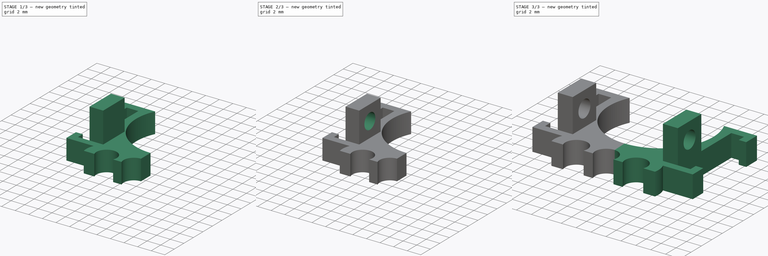
[diagram: build sequence overview — one tinted view per stage of 3, left to right]
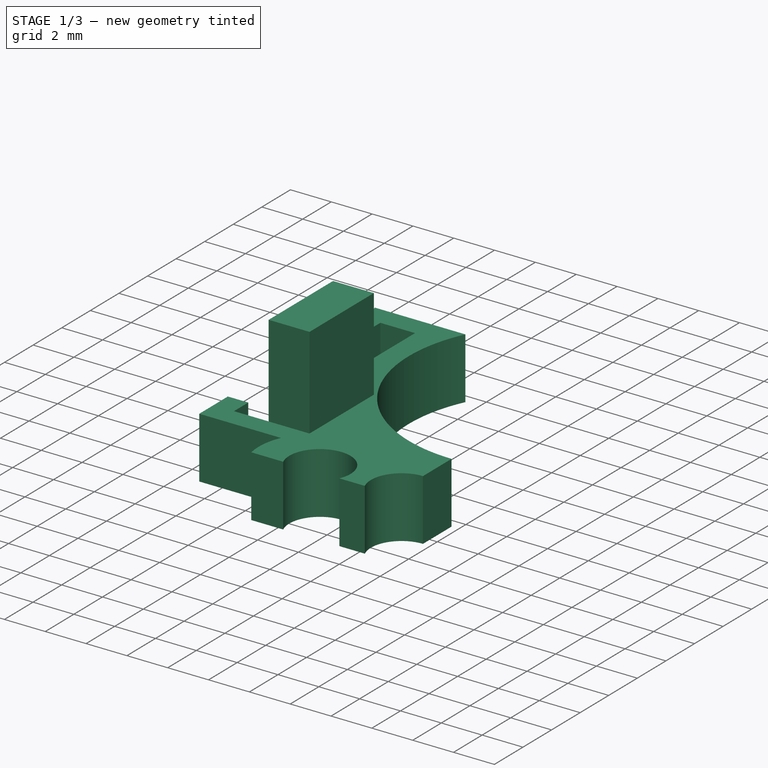
[diagram: stage 1 of 3 — iso view after this stage's code; geometry added in this stage tinted green]
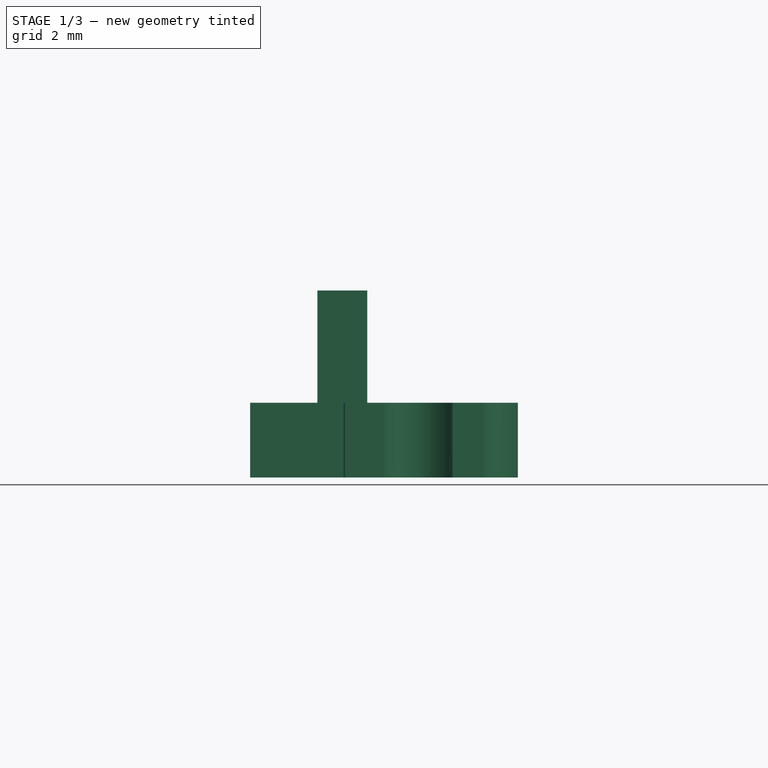
[diagram: stage 1 of 3 — front view after this stage's code; geometry added in this stage tinted green]
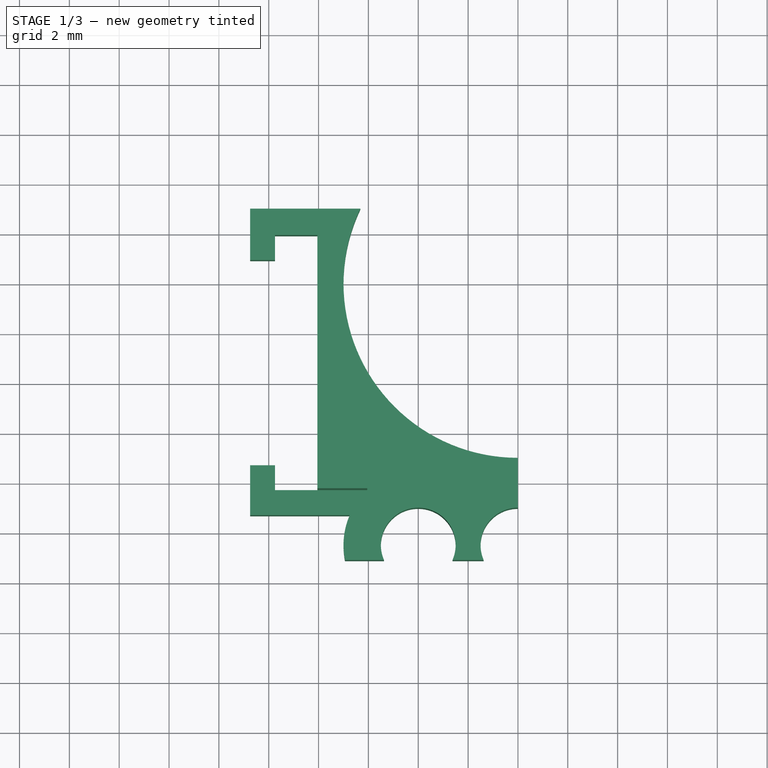
[diagram: stage 1 of 3 — top view after this stage's code; geometry added in this stage tinted green]
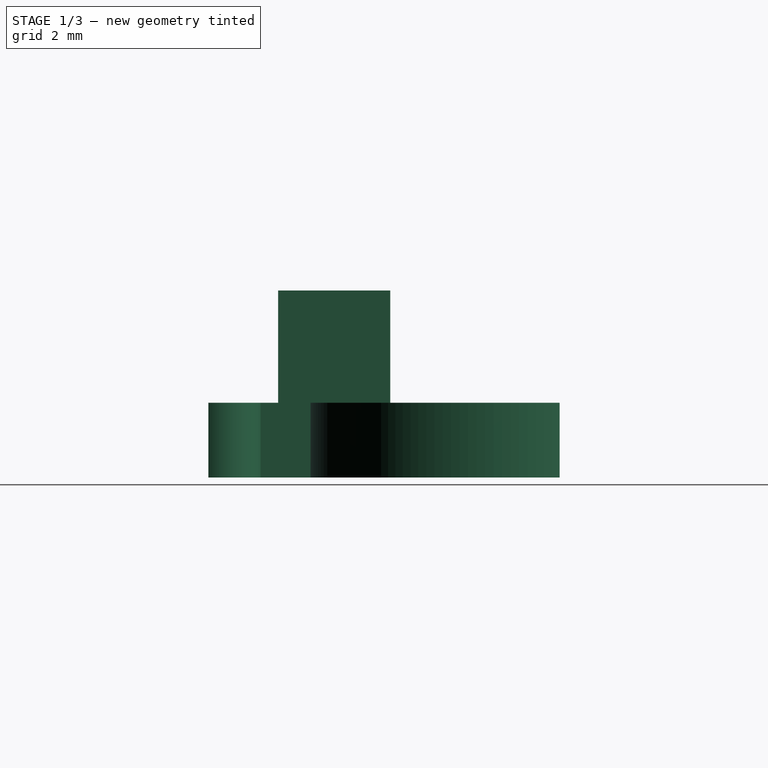
[diagram: stage 1 of 3 — right view after this stage's code; geometry added in this stage tinted green]
FCSTD DOCUMENT  (FreeCAD 0.14R3700 (Git))
Label: mount_ring
License: CC-BY 3.0
LicenseURL: http://creativecommons.org/licenses/by/3.0/
objects: Sketcher::SketchObject×3, PartDesign::Pad×2, PartDesign::Pocket×1, Part::Mirroring×1, Part::MultiFuse×1
note: 11 computed .brp shape members not serialized (recipe doc carries the construction recipe); baked Part::Feature solids carry a one-line shape summary decoded from their .brp

FEATURE [Sketcher::SketchObject] Sketch
  sketch-geometry (18):
    g0: ArcOfCircle CenterX=0 CenterY=0 CenterZ=0 NormalX=0 NormalY=0 NormalZ=1 Radius=7 StartAngle=2.69868 EndAngle=4.71239
    g1: ArcOfCircle CenterX=0 CenterY=-10.5 CenterZ=0 NormalX=0 NormalY=0 NormalZ=1 Radius=1.5 StartAngle=1.5708 EndAngle=3.55311
    g2: ArcOfCircle CenterX=-4 CenterY=-10.5 CenterZ=0 NormalX=0 NormalY=0 NormalZ=1 Radius=1.5 StartAngle=5.87167 EndAngle=9.83629
    g3: ArcOfCircle CenterX=-4 CenterY=-10.5 CenterZ=0 NormalX=0 NormalY=0 NormalZ=1 Radius=3 StartAngle=2.72948 EndAngle=3.34295
    g4: LineSegment StartX=-6.93939 StartY=-11.1 StartZ=0 EndX=-5.37477 EndY=-11.1 EndZ=0
    g5: LineSegment StartX=-2.62523 StartY=-11.1 StartZ=0 EndX=-1.37477 EndY=-11.1 EndZ=0
    g6: LineSegment StartX=-8.04884 StartY=1.94163 StartZ=0 EndX=-8.04884 EndY=-8.29837 EndZ=0
    g7: LineSegment StartX=-8.04884 StartY=1.94163 StartZ=0 EndX=-9.74884 EndY=1.94163 EndZ=0
    g8: LineSegment StartX=-9.74884 StartY=-8.29837 StartZ=0 EndX=-8.04884 EndY=-8.29837 EndZ=0
    g9: LineSegment StartX=-9.74884 StartY=1.94163 StartZ=0 EndX=-9.74884 EndY=0.941626 EndZ=0
    g10: LineSegment StartX=-9.74884 StartY=0.941626 StartZ=0 EndX=-10.7488 EndY=0.941626 EndZ=0
    g11: LineSegment StartX=-10.7488 StartY=3 StartZ=0 EndX=-10.7488 EndY=0.941626 EndZ=0
    g12: LineSegment StartX=-10.7488 StartY=-7.29837 StartZ=0 EndX=-9.74884 EndY=-7.29837 EndZ=0
    g13: LineSegment StartX=-9.74884 StartY=-7.29837 StartZ=0 EndX=-9.74884 EndY=-8.29837 EndZ=0
    g14: LineSegment StartX=-10.7488 StartY=-7.29837 StartZ=0 EndX=-10.7488 EndY=-9.29837 EndZ=0
    g15: LineSegment StartX=-10.7488 StartY=-9.29837 StartZ=0 EndX=-6.74884 EndY=-9.29837 EndZ=0
    g16: LineSegment StartX=-10.7488 StartY=3 StartZ=0 EndX=-6.32456 EndY=3 EndZ=0
    g17: LineSegment StartX=0 StartY=-7 StartZ=0 EndX=0 EndY=-9 EndZ=0
  constraints (58):
    c: Radius(g0) = 7
    c: Coincident(g0,g-1)
    c: DistanceY(g-1,g0) = 3
    c: Radius(g1) = 1.5
    c: DistanceX(g-1,g1) = 0
    c: DistanceY(g-1,g1) = -10.5
    c: Radius(g2) = 1.5
    c: DistanceY(g1,g2) = 0
    c: DistanceX(g2,g1) = 4
    c: Coincident(g3,g2)
    c: Radius(g3) = 3
    c: DistanceY(g2,g2) = 0
    c: DistanceY(g3,g2) = 0
    c: Coincident(g3,g4)
    c: Coincident(g2,g4)
    c: Coincident(g2,g5)
    c: Coincident(g1,g5)
    c: DistanceY(g2,g2) = 0.6
    c: DistanceY(g1,g2) = 0
    c: Vertical(g6)
    c: Horizontal(g7)
    c: Horizontal(g8)
    c: PointOnObject(g6,g8)
    c: PointOnObject(g6,g7)
    c: Coincident(g9,g10)
    c: Horizontal(g10)
    c: Vertical(g9)
    c: DistanceY(g9,g9) = -1
    c: DistanceX(g9,g6) = 1.7
    c: Coincident(g6,g7)
    c: PointOnObject(g7,g9)
    c: DistanceX(g10,g9) = 1
    c: Coincident(g10,g11)
    c: Vertical(g11)
    c: Coincident(g6,g8)
    c: Coincident(g12,g13)
    c: Horizontal(g12)
    c: Vertical(g13)
    c: PointOnObject(g8,g13)
    c: Coincident(g12,g14)
    c: DistanceX(g10,g12) = 0
    c: Vertical(g14)
    c: DistanceX(g12,g12) = -1
    c: Coincident(g8,g13)
    c: DistanceY(g14,g8) = 1
    c: DistanceY(g6,g12) = 1
    c: Coincident(g7,g9)
    c: DistanceY(g6,g6) = -10.24
    c: Coincident(g14,g15)
    c: Horizontal(g15)
    c: Coincident(g3,g15)
    c: Coincident(g0,g16)
    c: Coincident(g11,g16)
    c: DistanceX(g14,g3) = 4
    c: DistanceX(g0,g11) = -4.42428
    c: Vertical(g17)
    c: Coincident(g1,g17)
    c: Coincident(g0,g17)
FEATURE [PartDesign::Pad] Pad
  Length = 3
  Length2 = 20
  Sketch = -> Sketch
  Type = 0
FEATURE [Sketcher::SketchObject] Sketch001
  ExternalGeometry = -> [Pad]
  Placement = pos=(0,0,3) rot=(0,0,1;0rad)
  Support = -> Pad [Face20]
  sketch-geometry (4):
    g0: LineSegment StartX=-8.04884 StartY=-3.79837 StartZ=0 EndX=-6.04884 EndY=-3.79837 EndZ=0
    g1: LineSegment StartX=-6.04884 StartY=-3.79837 StartZ=0 EndX=-6.04884 EndY=-8.29837 EndZ=0
    g2: LineSegment StartX=-6.04884 StartY=-8.29837 StartZ=0 EndX=-8.04884 EndY=-8.29837 EndZ=0
    g3: LineSegment StartX=-8.04884 StartY=-8.29837 StartZ=0 EndX=-8.04884 EndY=-3.79837 EndZ=0
  constraints (12):
    c: Coincident(g0,g1)
    c: Coincident(g1,g2)
    c: Coincident(g2,g3)
    c: Coincident(g3,g0)
    c: Horizontal(g0)
    c: Horizontal(g2)
    c: Vertical(g1)
    c: Vertical(g3)
    c: DistanceX(g0,g0) = 2
    c: DistanceY(g0,g1) = -4.5
    c: DistanceX(g-3,g2) = 0
    c: DistanceY(g-3,g2) = 0
FEATURE [PartDesign::Pad] Pad001
  Length = 4.5
  Length2 = 20
  Sketch = -> Sketch001
  Type = 0
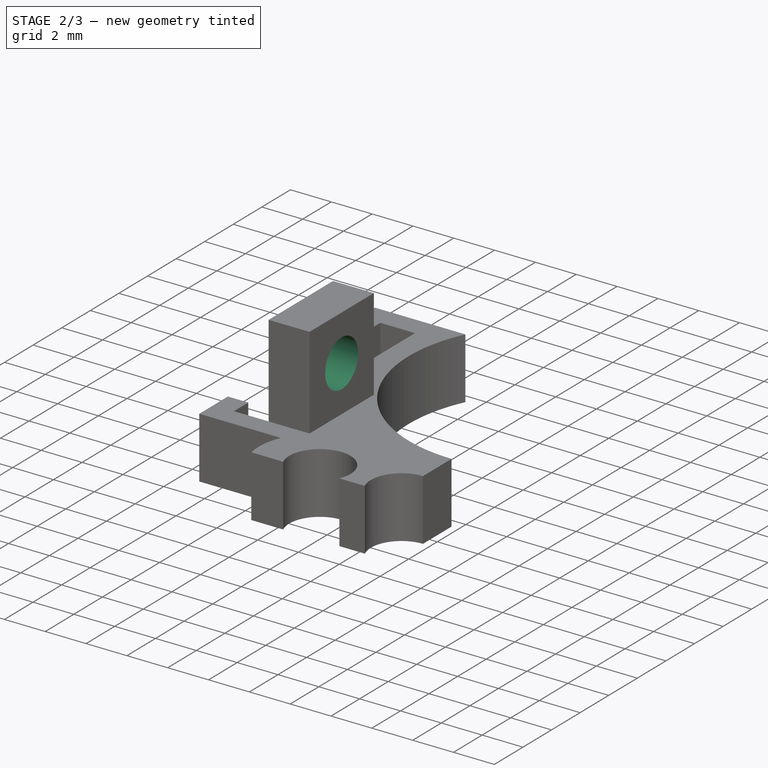
[diagram: stage 2 of 3 — iso view after this stage's code; geometry added in this stage tinted green]
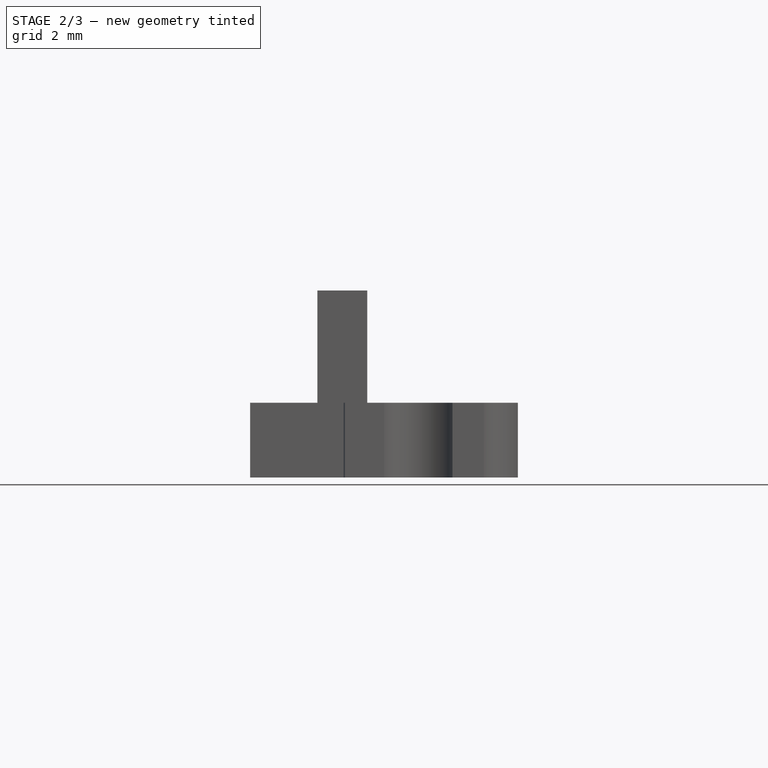
[diagram: stage 2 of 3 — front view after this stage's code; geometry added in this stage tinted green]
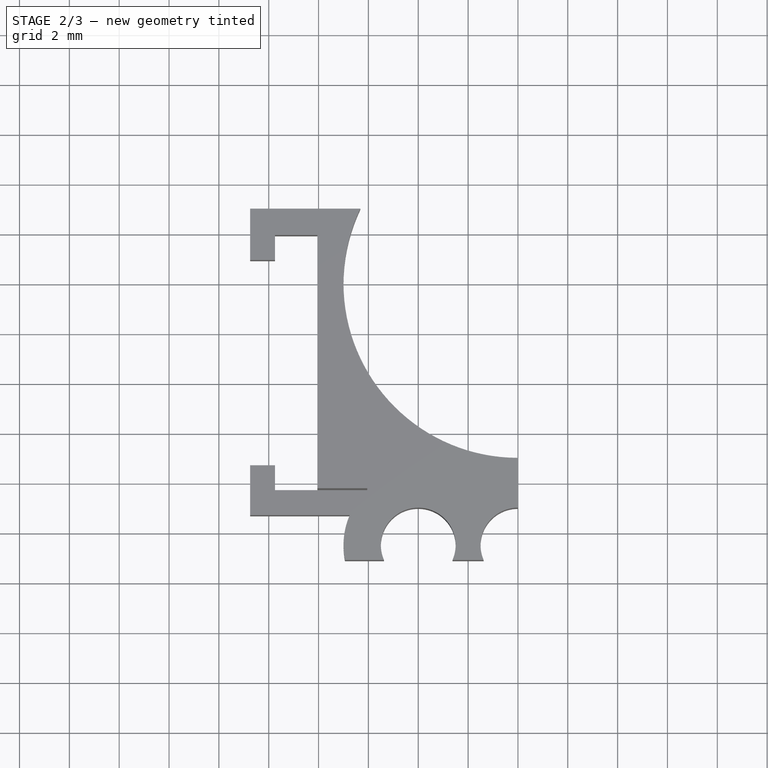
[diagram: stage 2 of 3 — top view after this stage's code; geometry added in this stage tinted green]
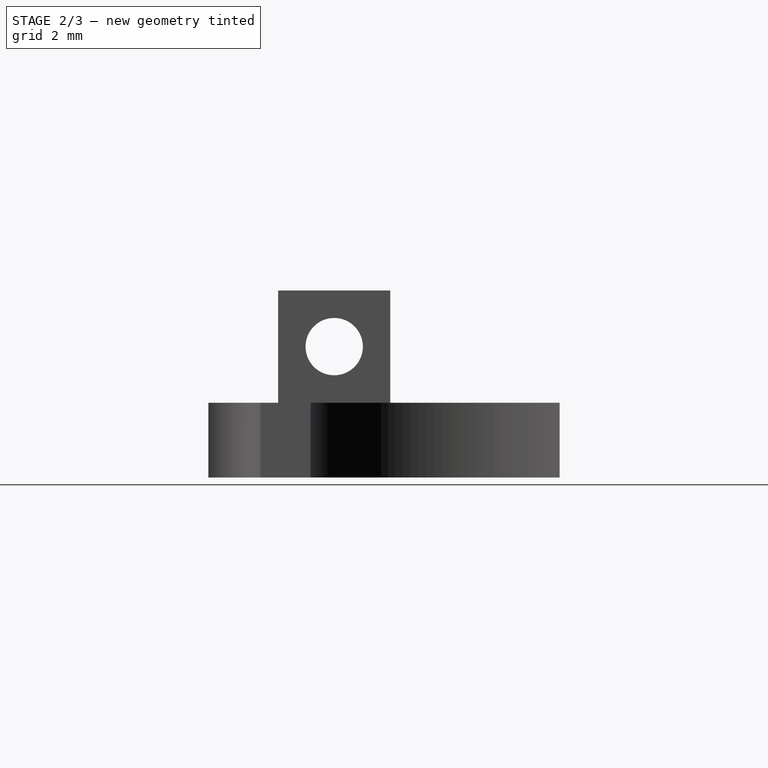
[diagram: stage 2 of 3 — right view after this stage's code; geometry added in this stage tinted green]
FEATURE [Sketcher::SketchObject] Sketch002
  ExternalGeometry = -> [Pad001]
  Placement = pos=(-8.04884,0,0) rot=(0.57735,-0.57735,-0.57735;2.0944rad)
  Support = -> Pad001 [Face24]
  sketch-geometry (1):
    g0: Circle CenterX=6.04837 CenterY=5.25 CenterZ=0 NormalX=0 NormalY=0 NormalZ=1 Radius=1.15
  constraints (3):
    c: DistanceX(g0,g-3) = 2.25
    c: DistanceY(g0,g-3) = 2.25
    c: Radius(g0) = 1.15
FEATURE [PartDesign::Pocket] Pocket
  Length = 5
  Sketch = -> Sketch002
  Type = 0
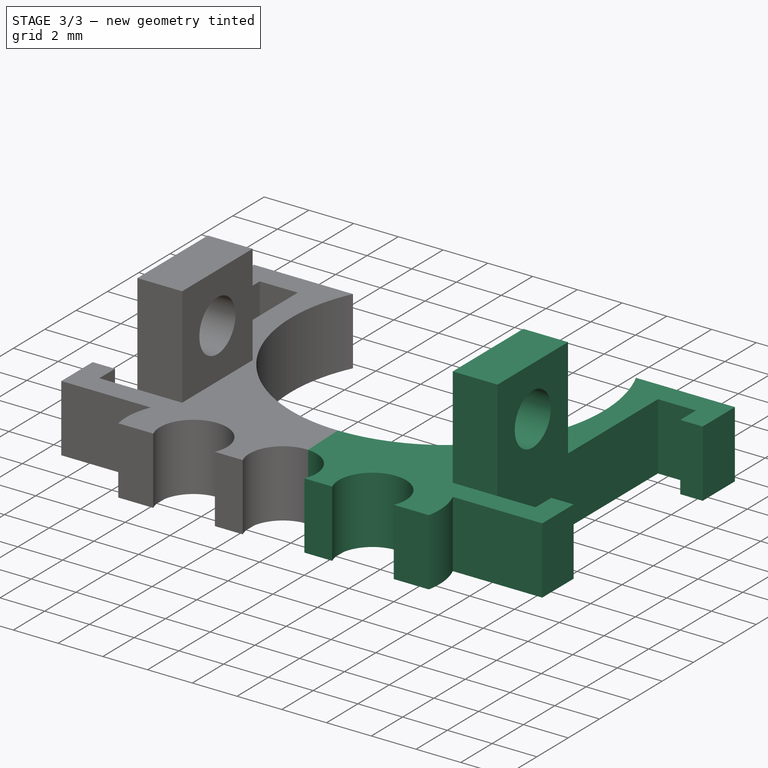
[diagram: stage 3 of 3 — iso view after this stage's code; geometry added in this stage tinted green]
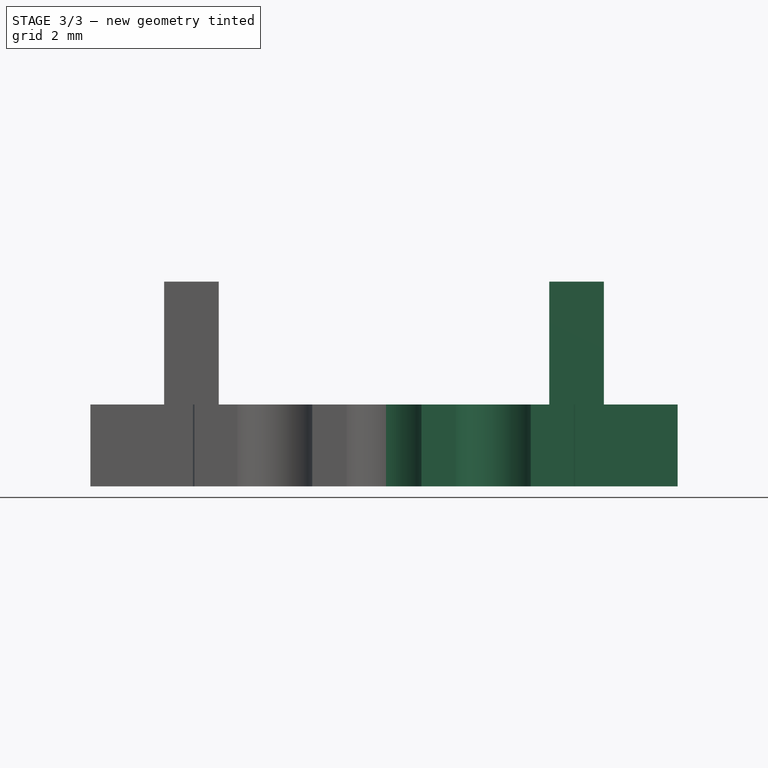
[diagram: stage 3 of 3 — front view after this stage's code; geometry added in this stage tinted green]
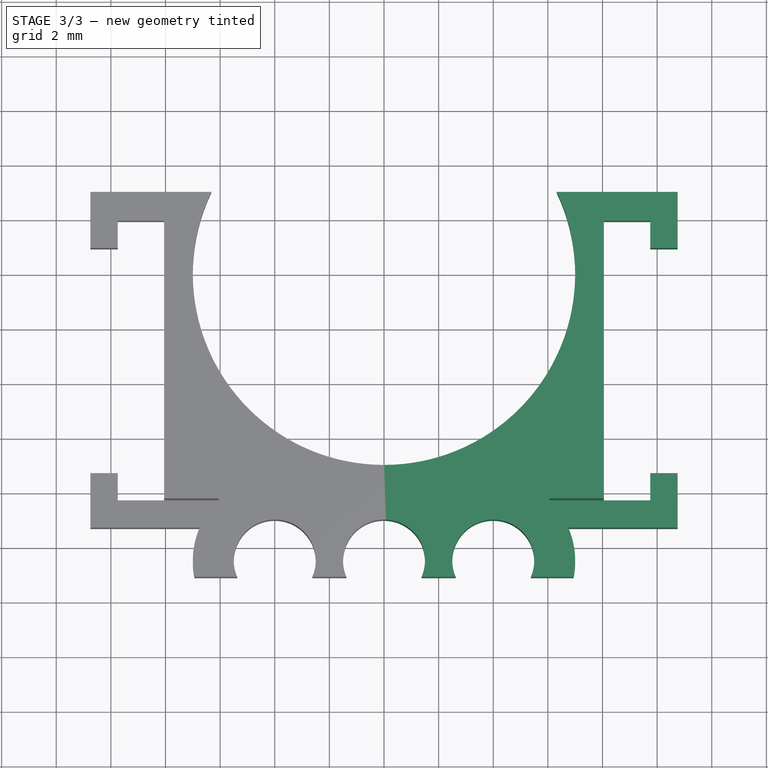
[diagram: stage 3 of 3 — top view after this stage's code; geometry added in this stage tinted green]
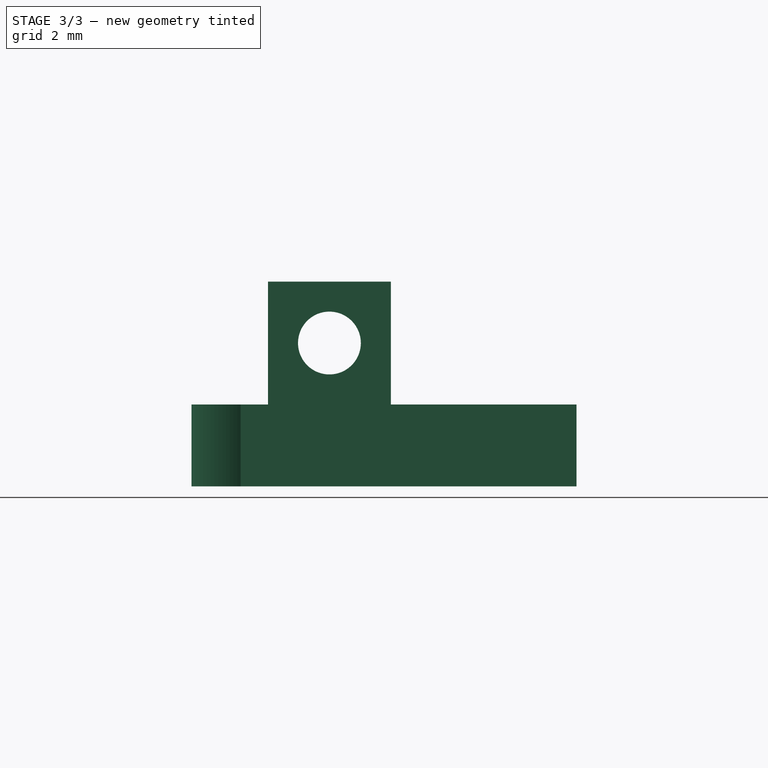
[diagram: stage 3 of 3 — right view after this stage's code; geometry added in this stage tinted green]
FEATURE [Part::Mirroring] Part__Mirroring  label="Pocket (Mirror #1)"
  Base = (0,0,0)
  Normal = (1,0,0)
  Source = -> Pocket
FEATURE [Part::MultiFuse] Fusion
  Shapes = -> [Part__Mirroring,Pocket]
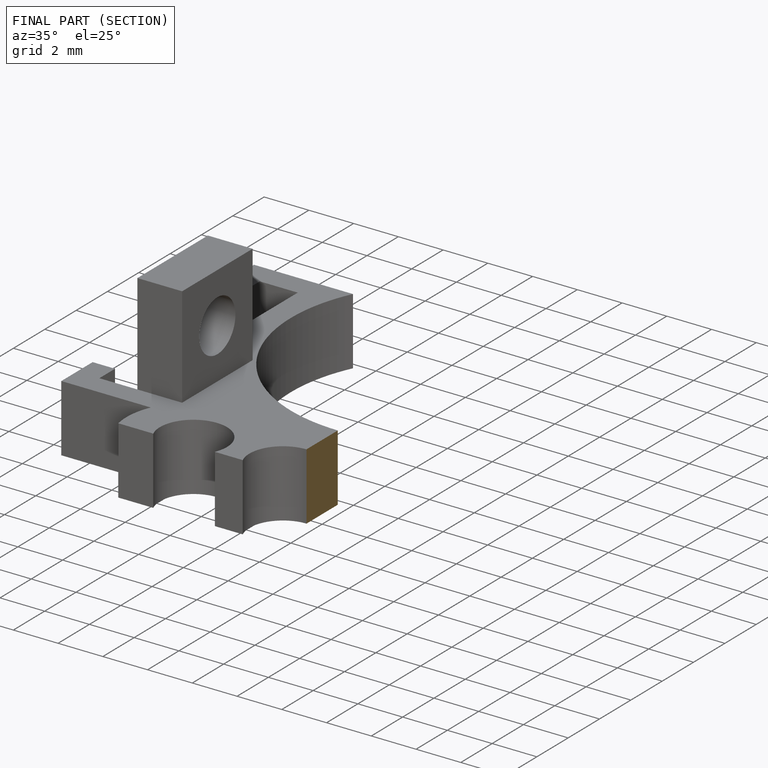
[diagram: finished part — half-section view (interior)]
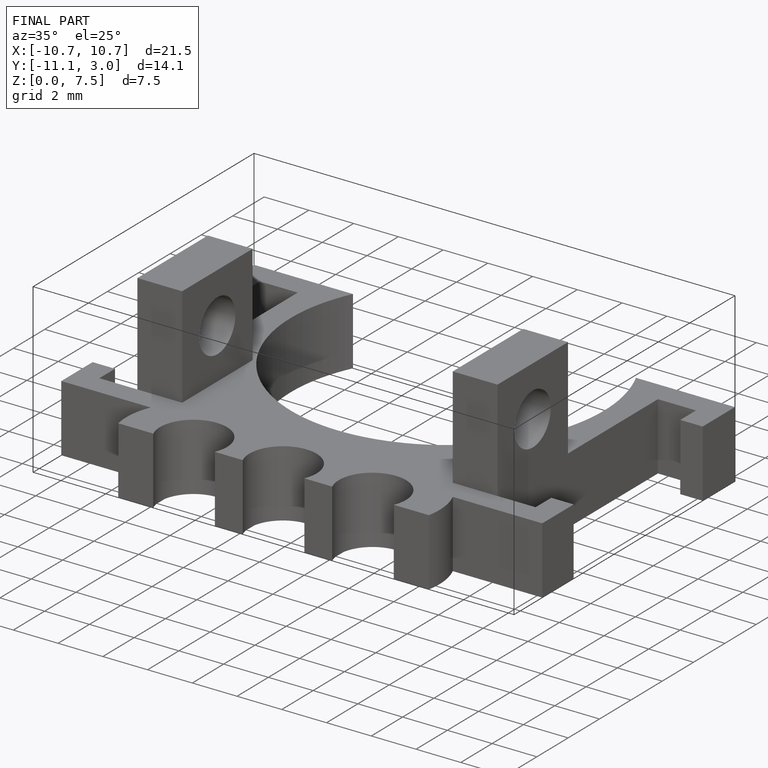
[diagram: finished part — iso view with bounding-box wireframe]
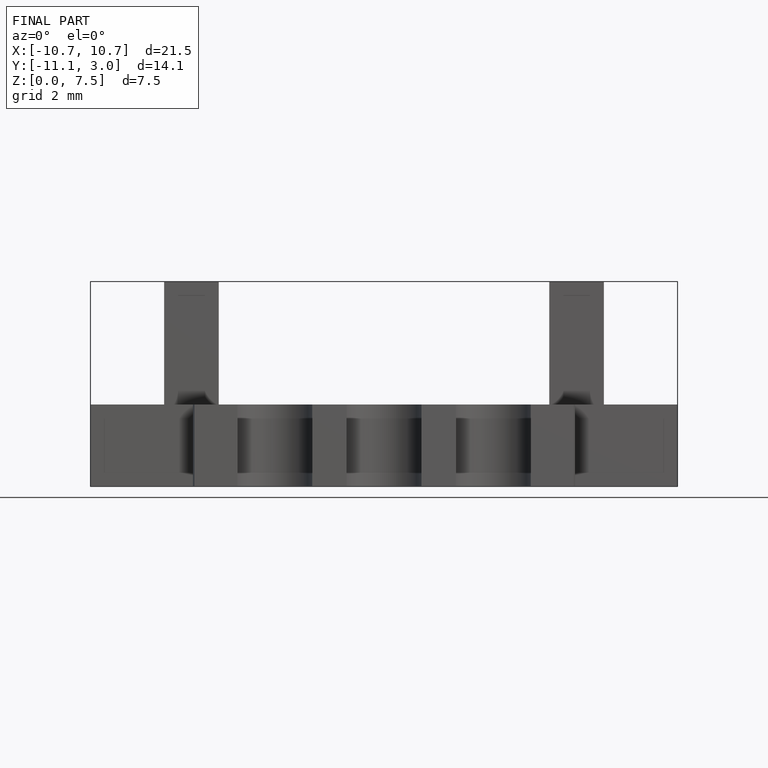
[diagram: finished part — front view with bounding-box wireframe]
